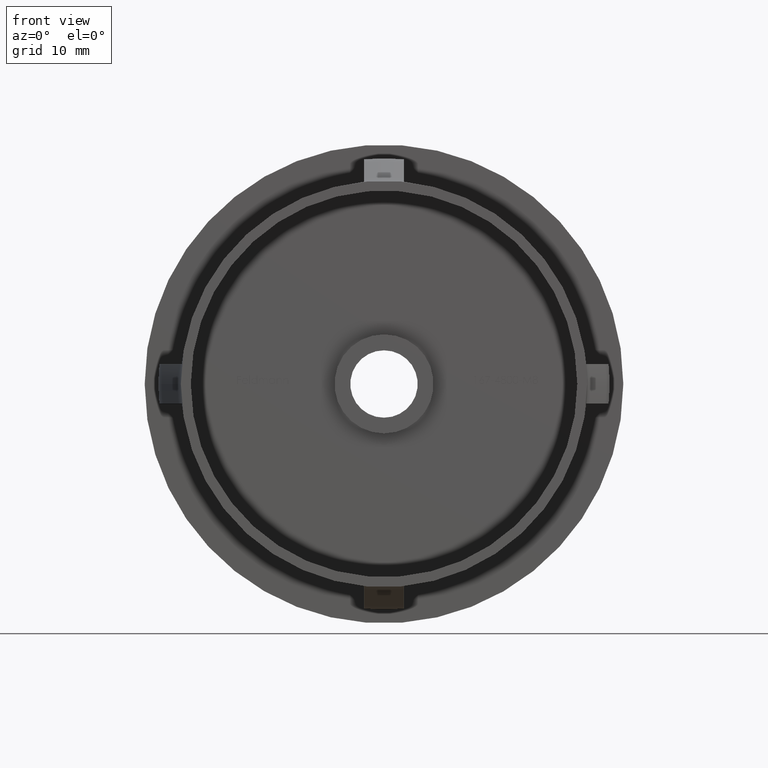
[diagram: clean part render]
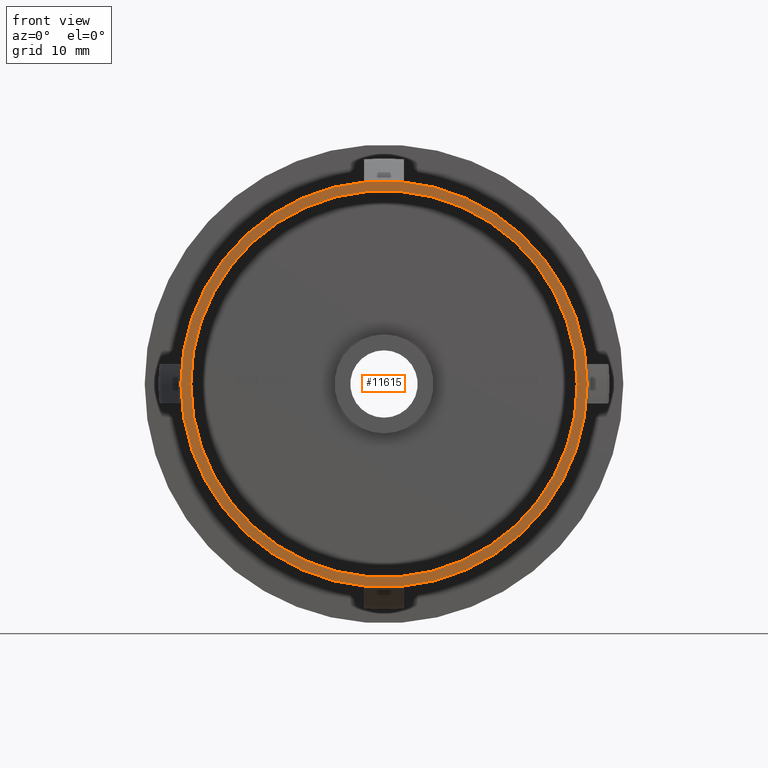
[diagram: same view with one face highlighted and labeled with its STEP entity id]
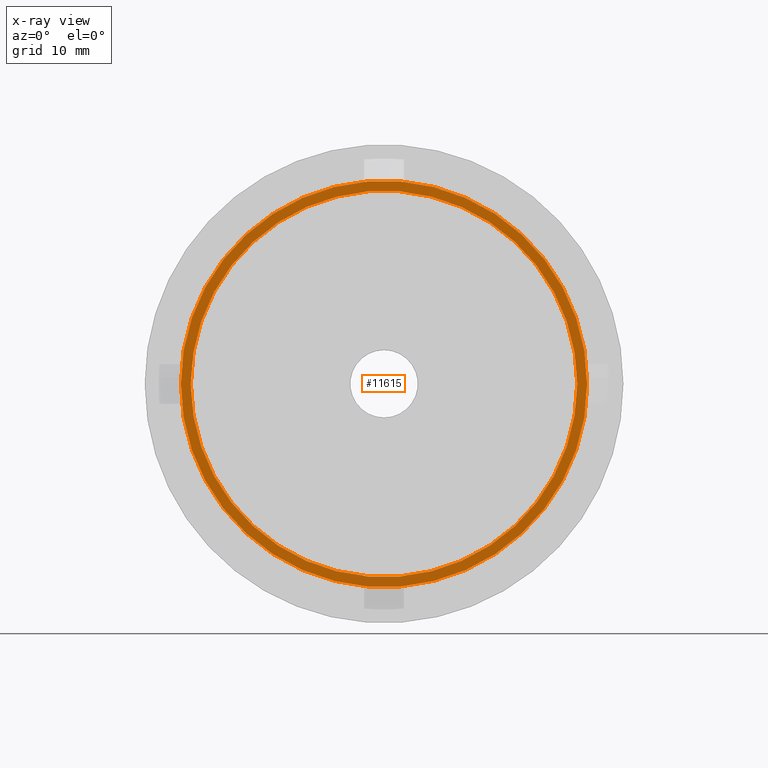
[diagram: x-ray of the same camera — body ghosted, the highlighted face saturated]
A machine part, front view. The second image highlights one B-rep face of the part: STEP entity #11615.
The next image is the same camera in x-ray: the body ghosted, the highlighted face saturated — about 0% of this face is hidden behind the body in this view.
In plain terms, the highlighted planar face has unit normal (-0, 1, 0).
Its self-contained STEP definition (entity closure, byte-faithful):
#776 = CARTESIAN_POINT ( 'NONE',  ( 4.589976203204287100E-015, -3.469446951953614200E-015, 0.0000000000000000000 ) ) ;
#1374 = DIRECTION ( 'NONE',  ( -1.000000000000000000, -1.714505518806297100E-016, 0.0000000000000000000 ) ) ;
#1656 = EDGE_CURVE ( 'NONE', #12543, #3433, #10463, .T. ) ;
#1874 = AXIS2_PLACEMENT_3D ( 'NONE', #16763, #11216, #8763 ) ;
#2278 = CIRCLE ( 'NONE', #8524, 20.50000000000000000 ) ;
#2553 = ORIENTED_EDGE ( 'NONE', *, *, #1656, .T. ) ;
#2606 = CARTESIAN_POINT ( 'NONE',  ( 19.50000000000000400, -8.572527594031492900E-017, 0.0000000000000000000 ) ) ;
#2779 = FACE_OUTER_BOUND ( 'NONE', #17000, .T. ) ;
#3248 = DIRECTION ( 'NONE',  ( -1.714505518806297100E-016, 1.000000000000000000, -0.0000000000000000000 ) ) ;
#3433 = VERTEX_POINT ( 'NONE', #16153 ) ;
#3501 = EDGE_CURVE ( 'NONE', #12529, #10206, #2278, .T. ) ;
#3848 = CIRCLE ( 'NONE', #1874, 19.50000000000000000 ) ;
#4015 = ORIENTED_EDGE ( 'NONE', *, *, #9931, .T. ) ;
#4256 = CARTESIAN_POINT ( 'NONE',  ( 20.50000000000000400, 4.528936159929513800E-017, 2.510525938252074500E-015 ) ) ;
#4590 = DIRECTION ( 'NONE',  ( -1.000000000000000000, -1.714505518806297600E-016, 0.0000000000000000000 ) ) ;
#5412 = PLANE ( 'NONE',  #8036 ) ;
#7498 = CARTESIAN_POINT ( 'NONE',  ( 4.589976203204287100E-015, -3.469446951953614200E-015, 0.0000000000000000000 ) ) ;
#7645 = CIRCLE ( 'NONE', #9213, 20.50000000000000000 ) ;
#8036 = AXIS2_PLACEMENT_3D ( 'NONE', #2606, #9384, #1374 ) ;
#8524 = AXIS2_PLACEMENT_3D ( 'NONE', #776, #10077, #15499 ) ;
#8763 = DIRECTION ( 'NONE',  ( -1.000000000000000000, -1.714505518806296900E-016, 0.0000000000000000000 ) ) ;
#8768 = CARTESIAN_POINT ( 'NONE',  ( -19.49999999999999600, -6.812732713625892700E-015, 0.0000000000000000000 ) ) ;
#9213 = AXIS2_PLACEMENT_3D ( 'NONE', #7498, #3248, #4590 ) ;
#9327 = ORIENTED_EDGE ( 'NONE', *, *, #3501, .F. ) ;
#9384 = DIRECTION ( 'NONE',  ( -1.714505518806297100E-016, 1.000000000000000000, 0.0000000000000000000 ) ) ;
#9931 = EDGE_CURVE ( 'NONE', #3433, #12543, #3848, .T. ) ;
#10056 = EDGE_LOOP ( 'NONE', ( #2553, #4015 ) ) ;
#10072 = ORIENTED_EDGE ( 'NONE', *, *, #15523, .F. ) ;
#10077 = DIRECTION ( 'NONE',  ( -1.714505518806297100E-016, 1.000000000000000000, -0.0000000000000000000 ) ) ;
#10206 = VERTEX_POINT ( 'NONE', #4256 ) ;
#10422 = DIRECTION ( 'NONE',  ( -1.714505518806297100E-016, 1.000000000000000000, -0.0000000000000000000 ) ) ;
#10463 = CIRCLE ( 'NONE', #16021, 19.50000000000000000 ) ;
#11216 = DIRECTION ( 'NONE',  ( -1.714505518806297100E-016, 1.000000000000000000, -0.0000000000000000000 ) ) ;
#11615 = ADVANCED_FACE ( 'NONE', ( #12785, #2779 ), #5412, .F. ) ;
#12504 = CARTESIAN_POINT ( 'NONE',  ( -20.49999999999999600, -6.984183265506524500E-015, 0.0000000000000000000 ) ) ;
#12529 = VERTEX_POINT ( 'NONE', #12504 ) ;
#12543 = VERTEX_POINT ( 'NONE', #8768 ) ;
#12785 = FACE_BOUND ( 'NONE', #10056, .T. ) ;
#15499 = DIRECTION ( 'NONE',  ( -1.000000000000000000, -1.714505518806297600E-016, 0.0000000000000000000 ) ) ;
#15523 = EDGE_CURVE ( 'NONE', #10206, #12529, #7645, .T. ) ;
#16021 = AXIS2_PLACEMENT_3D ( 'NONE', #17169, #10422, #17121 ) ;
#16153 = CARTESIAN_POINT ( 'NONE',  ( 19.50000000000000400, -1.261611902813349400E-016, 2.388061258337339300E-015 ) ) ;
#16763 = CARTESIAN_POINT ( 'NONE',  ( 4.589976203204287100E-015, -3.469446951953614200E-015, 0.0000000000000000000 ) ) ;
#17000 = EDGE_LOOP ( 'NONE', ( #9327, #10072 ) ) ;
#17121 = DIRECTION ( 'NONE',  ( -1.000000000000000000, -1.714505518806296900E-016, 0.0000000000000000000 ) ) ;
#17169 = CARTESIAN_POINT ( 'NONE',  ( 4.589976203204287100E-015, -3.469446951953614200E-015, 0.0000000000000000000 ) ) ;